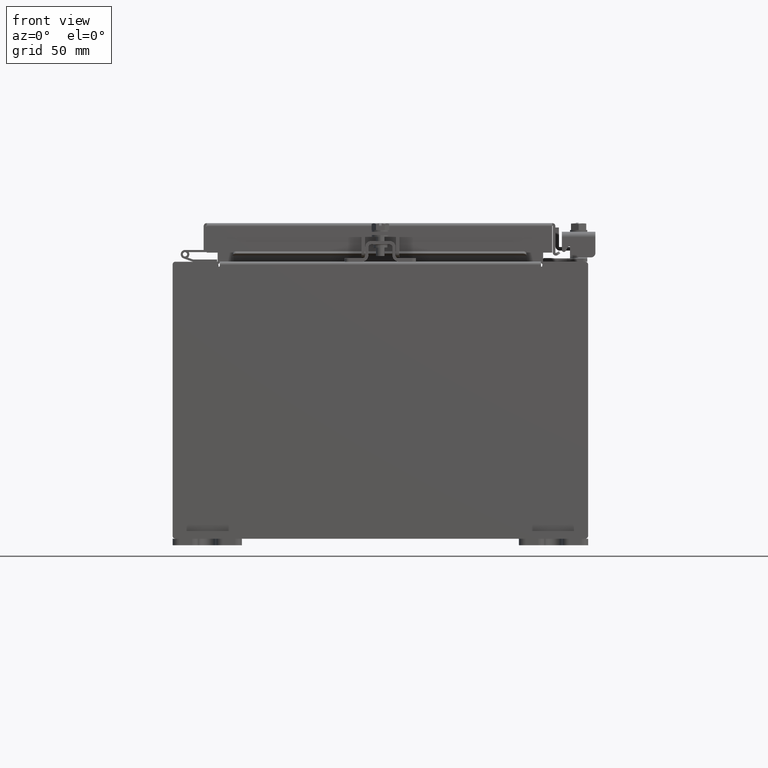
[diagram: clean part render]
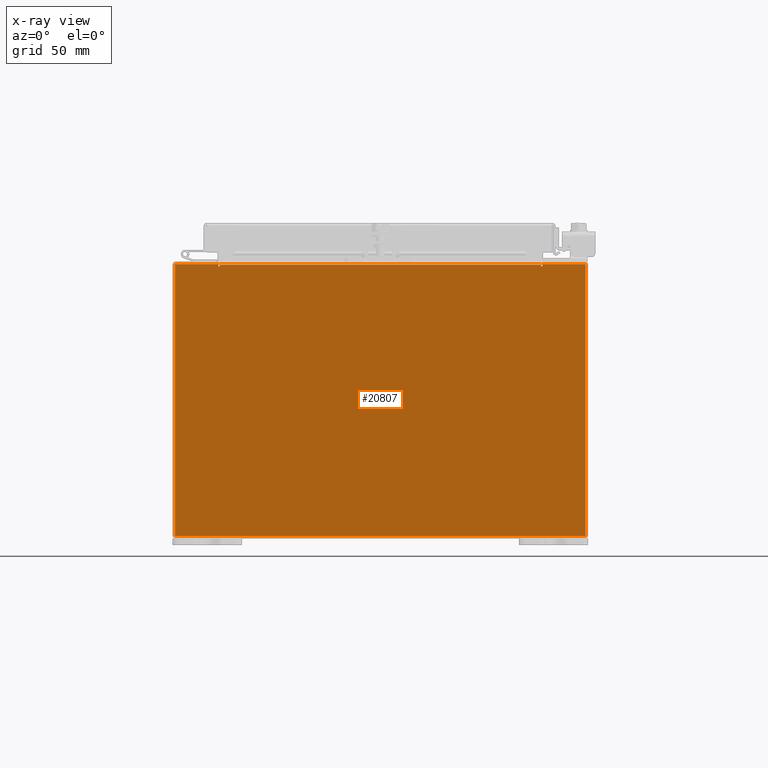
[diagram: x-ray — body ghosted, one internal face saturated and labeled with its STEP entity id]
A machine part, front view, then the same camera in x-ray: the body is ghosted and one INTERNAL B-rep face — a face not visible from any outside direction — is saturated and labeled: STEP entity #20807.
In plain terms, the highlighted planar face has unit normal (0, -1, 0).
Its self-contained STEP definition (entity closure, byte-faithful):
#331 = LINE ( 'NONE', #6425, #5133 ) ;
#335 = DIRECTION ( 'NONE',  ( 0.0000000000000000000, 0.0000000000000000000, -1.000000000000000000 ) ) ;
#575 = CARTESIAN_POINT ( 'NONE',  ( -4.637199999999998200, -0.07470000000000015500, 3.912299999999999200 ) ) ;
#653 = CIRCLE ( 'NONE', #15640, 0.01867500000000003900 ) ;
#775 = ORIENTED_EDGE ( 'NONE', *, *, #11389, .F. ) ;
#1103 = ORIENTED_EDGE ( 'NONE', *, *, #1611, .F. ) ;
#1611 = EDGE_CURVE ( 'NONE', #7560, #2995, #7638, .T. ) ;
#1634 = VECTOR ( 'NONE', #18023, 39.37007874015748100 ) ;
#1957 = AXIS2_PLACEMENT_3D ( 'NONE', #2675, #15633, #4812 ) ;
#2536 = CARTESIAN_POINT ( 'NONE',  ( -4.674549999999998200, -0.07470000000000015500, 3.925299999999999100 ) ) ;
#2675 = CARTESIAN_POINT ( 'NONE',  ( 0.0000000000000000000, -0.07470000000000015500, 0.0000000000000000000 ) ) ;
#2887 = ORIENTED_EDGE ( 'NONE', *, *, #17149, .F. ) ;
#2995 = VERTEX_POINT ( 'NONE', #9732 ) ;
#3071 = EDGE_CURVE ( 'NONE', #16292, #18568, #331, .T. ) ;
#3173 = EDGE_CURVE ( 'NONE', #11566, #13945, #13578, .T. ) ;
#3470 = VECTOR ( 'NONE', #12864, 39.37007874015748100 ) ;
#3859 = CARTESIAN_POINT ( 'NONE',  ( 5.925300000000002700, -0.07470000000000015500, 3.925299999999999100 ) ) ;
#3916 = VERTEX_POINT ( 'NONE', #18212 ) ;
#4000 = ORIENTED_EDGE ( 'NONE', *, *, #19453, .F. ) ;
#4713 = DIRECTION ( 'NONE',  ( 0.0000000000000000000, 0.0000000000000000000, -1.000000000000000000 ) ) ;
#4812 = DIRECTION ( 'NONE',  ( 0.0000000000000000000, -0.0000000000000000000, -1.000000000000000000 ) ) ;
#5133 = VECTOR ( 'NONE', #19061, 39.37007874015748100 ) ;
#5197 = EDGE_CURVE ( 'NONE', #8866, #3916, #22028, .T. ) ;
#5398 = CARTESIAN_POINT ( 'NONE',  ( -4.674549999999998200, -0.07470000000000015500, 3.874949999999999200 ) ) ;
#5426 = DIRECTION ( 'NONE',  ( -1.000000000000000000, -0.0000000000000000000, -0.0000000000000000000 ) ) ;
#6425 = CARTESIAN_POINT ( 'NONE',  ( -4.674549999999998200, -0.07470000000000015500, 3.925299999999999100 ) ) ;
#6458 = LINE ( 'NONE', #12551, #1634 ) ;
#6654 = DIRECTION ( 'NONE',  ( 0.0000000000000000000, -1.000000000000000000, 0.0000000000000000000 ) ) ;
#7076 = VECTOR ( 'NONE', #335, 39.37007874015748100 ) ;
#7371 = DIRECTION ( 'NONE',  ( 1.085143195100001200E-014, 1.695536242343751900E-015, 1.000000000000000000 ) ) ;
#7560 = VERTEX_POINT ( 'NONE', #3859 ) ;
#7638 = LINE ( 'NONE', #11164, #7076 ) ;
#7821 = CARTESIAN_POINT ( 'NONE',  ( -5.925299999999998200, -0.07470000000000015500, 3.925299999999999100 ) ) ;
#7901 = CARTESIAN_POINT ( 'NONE',  ( -4.655874999999998200, -0.07470000000000015500, 3.874949999999999200 ) ) ;
#8866 = VERTEX_POINT ( 'NONE', #575 ) ;
#9020 = LINE ( 'NONE', #19180, #17506 ) ;
#9706 = DIRECTION ( 'NONE',  ( 0.0000000000000000000, 0.0000000000000000000, -1.000000000000000000 ) ) ;
#9732 = CARTESIAN_POINT ( 'NONE',  ( 5.925300000000002700, -0.07470000000000015500, -3.925300000000000500 ) ) ;
#9764 = DIRECTION ( 'NONE',  ( -0.0000000000000000000, -0.0000000000000000000, 1.000000000000000000 ) ) ;
#10112 = VECTOR ( 'NONE', #7371, 39.37007874015748100 ) ;
#10202 = VECTOR ( 'NONE', #18582, 39.37007874015748100 ) ;
#10678 = EDGE_LOOP ( 'NONE', ( #775, #15589, #15512, #4000, #14033, #1103, #15679, #14769, #14771, #2887, #18579, #11225 ) ) ;
#10685 = LINE ( 'NONE', #20009, #10112 ) ;
#11102 = AXIS2_PLACEMENT_3D ( 'NONE', #17471, #6654, #19293 ) ;
#11164 = CARTESIAN_POINT ( 'NONE',  ( 5.925300000000002700, -0.07470000000000015500, 3.925299999999999100 ) ) ;
#11225 = ORIENTED_EDGE ( 'NONE', *, *, #17925, .F. ) ;
#11236 = EDGE_CURVE ( 'NONE', #18973, #7560, #23265, .T. ) ;
#11273 = CARTESIAN_POINT ( 'NONE',  ( -5.925299999999998200, -0.07470000000000015500, 3.925299999999999100 ) ) ;
#11362 = VECTOR ( 'NONE', #5426, 39.37007874015748100 ) ;
#11389 = EDGE_CURVE ( 'NONE', #18568, #21443, #653, .T. ) ;
#11566 = VERTEX_POINT ( 'NONE', #17292 ) ;
#12009 = CARTESIAN_POINT ( 'NONE',  ( -4.637199999999998200, -0.07470000000000015500, 3.874949999999999200 ) ) ;
#12295 = VECTOR ( 'NONE', #9764, 39.37007874015748100 ) ;
#12325 = EDGE_CURVE ( 'NONE', #2995, #13088, #16745, .T. ) ;
#12330 = DIRECTION ( 'NONE',  ( 1.000000000000000000, 0.0000000000000000000, 0.0000000000000000000 ) ) ;
#12551 = CARTESIAN_POINT ( 'NONE',  ( -4.637199999999998200, -0.07470000000000015500, 3.874949999999999200 ) ) ;
#12628 = CARTESIAN_POINT ( 'NONE',  ( 4.674550000000002600, -0.07470000000000015500, 3.874949999999999200 ) ) ;
#12864 = DIRECTION ( 'NONE',  ( 1.000000000000000000, 0.0000000000000000000, 0.0000000000000000000 ) ) ;
#13088 = VERTEX_POINT ( 'NONE', #20851 ) ;
#13577 = VERTEX_POINT ( 'NONE', #11273 ) ;
#13578 = CIRCLE ( 'NONE', #11102, 0.01867500000000003900 ) ;
#13792 = CARTESIAN_POINT ( 'NONE',  ( 4.674550000000001800, -0.07470000000000015500, 3.925299999999999100 ) ) ;
#13945 = VERTEX_POINT ( 'NONE', #12628 ) ;
#14033 = ORIENTED_EDGE ( 'NONE', *, *, #12325, .F. ) ;
#14769 = ORIENTED_EDGE ( 'NONE', *, *, #17986, .F. ) ;
#14771 = ORIENTED_EDGE ( 'NONE', *, *, #3173, .F. ) ;
#15512 = ORIENTED_EDGE ( 'NONE', *, *, #22417, .F. ) ;
#15589 = ORIENTED_EDGE ( 'NONE', *, *, #3071, .F. ) ;
#15633 = DIRECTION ( 'NONE',  ( 0.0000000000000000000, -1.000000000000000000, 0.0000000000000000000 ) ) ;
#15640 = AXIS2_PLACEMENT_3D ( 'NONE', #7901, #20567, #9706 ) ;
#15679 = ORIENTED_EDGE ( 'NONE', *, *, #11236, .F. ) ;
#16292 = VERTEX_POINT ( 'NONE', #2536 ) ;
#16745 = LINE ( 'NONE', #18048, #11362 ) ;
#17149 = EDGE_CURVE ( 'NONE', #3916, #11566, #9020, .T. ) ;
#17208 = VECTOR ( 'NONE', #12330, 39.37007874015748100 ) ;
#17292 = CARTESIAN_POINT ( 'NONE',  ( 4.637200000000002700, -0.07470000000000015500, 3.874949999999999200 ) ) ;
#17349 = FACE_OUTER_BOUND ( 'NONE', #10678, .T. ) ;
#17471 = CARTESIAN_POINT ( 'NONE',  ( 4.655875000000002700, -0.07470000000000015500, 3.874949999999999200 ) ) ;
#17506 = VECTOR ( 'NONE', #4713, 39.37007874015748100 ) ;
#17925 = EDGE_CURVE ( 'NONE', #21443, #8866, #6458, .T. ) ;
#17986 = EDGE_CURVE ( 'NONE', #13945, #18973, #10685, .T. ) ;
#18023 = DIRECTION ( 'NONE',  ( 0.0000000000000000000, 0.0000000000000000000, 1.000000000000000000 ) ) ;
#18048 = CARTESIAN_POINT ( 'NONE',  ( -5.925299999999998200, -0.07470000000000015500, -3.925300000000000500 ) ) ;
#18212 = CARTESIAN_POINT ( 'NONE',  ( 4.637200000000002700, -0.07470000000000015500, 3.912299999999999200 ) ) ;
#18568 = VERTEX_POINT ( 'NONE', #5398 ) ;
#18579 = ORIENTED_EDGE ( 'NONE', *, *, #5197, .F. ) ;
#18582 = DIRECTION ( 'NONE',  ( 1.000000000000000000, 0.0000000000000000000, 0.0000000000000000000 ) ) ;
#18973 = VERTEX_POINT ( 'NONE', #13792 ) ;
#19061 = DIRECTION ( 'NONE',  ( 0.0000000000000000000, -1.695536242343751900E-015, -1.000000000000000000 ) ) ;
#19180 = CARTESIAN_POINT ( 'NONE',  ( 4.637200000000002700, -0.07470000000000015500, 3.912299999999999200 ) ) ;
#19293 = DIRECTION ( 'NONE',  ( 0.0000000000000000000, 0.0000000000000000000, -1.000000000000000000 ) ) ;
#19453 = EDGE_CURVE ( 'NONE', #13088, #13577, #21959, .T. ) ;
#19822 = LINE ( 'NONE', #7821, #10202 ) ;
#19984 = CARTESIAN_POINT ( 'NONE',  ( -4.637199999999998200, -0.07470000000000015500, 3.912299999999999200 ) ) ;
#20009 = CARTESIAN_POINT ( 'NONE',  ( 4.674550000000002600, -0.07470000000000015500, 3.874949999999999200 ) ) ;
#20567 = DIRECTION ( 'NONE',  ( 0.0000000000000000000, -1.000000000000000000, 0.0000000000000000000 ) ) ;
#20617 = CARTESIAN_POINT ( 'NONE',  ( -5.925299999999998200, -0.07470000000000015500, 3.925299999999999100 ) ) ;
#20807 = ADVANCED_FACE ( 'NONE', ( #17349 ), #22521, .T. ) ;
#20851 = CARTESIAN_POINT ( 'NONE',  ( -5.925299999999998200, -0.07470000000000015500, -3.925300000000000500 ) ) ;
#21443 = VERTEX_POINT ( 'NONE', #12009 ) ;
#21911 = CARTESIAN_POINT ( 'NONE',  ( -5.925299999999998200, -0.07470000000000015500, 3.925299999999999100 ) ) ;
#21959 = LINE ( 'NONE', #20617, #12295 ) ;
#22028 = LINE ( 'NONE', #19984, #17208 ) ;
#22417 = EDGE_CURVE ( 'NONE', #13577, #16292, #19822, .T. ) ;
#22521 = PLANE ( 'NONE',  #1957 ) ;
#23265 = LINE ( 'NONE', #21911, #3470 ) ;